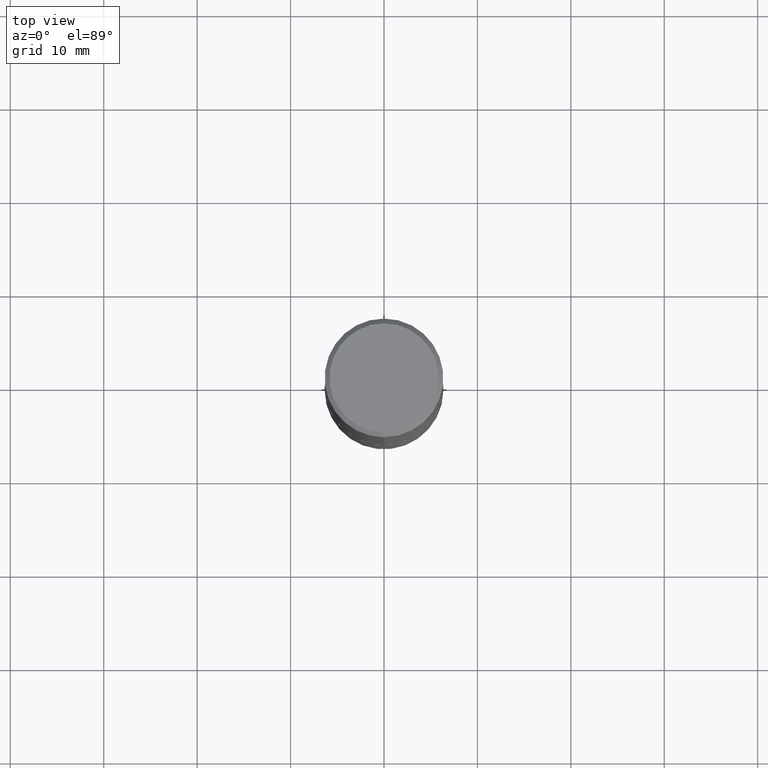
[diagram: clean part render]
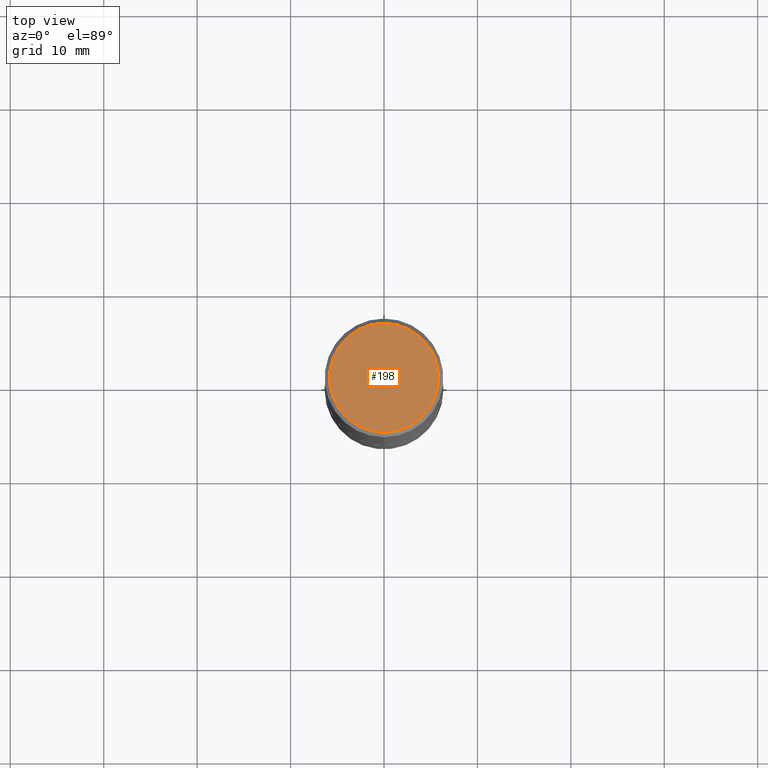
[diagram: same view with one face highlighted and labeled with its STEP entity id]
A machine part, top view. The second image highlights one B-rep face of the part: STEP entity #198.
In plain terms, the highlighted planar face has unit normal (0, -0, -1).
Its self-contained STEP definition (entity closure, byte-faithful):
#52 = CARTESIAN_POINT ( 'NONE',  ( 1.606081415867841067E-15, 0.2299999999999999822, -8.053652698183474938E-16 ) ) ;
#69 = DIRECTION ( 'NONE',  ( 6.982962677686265922E-15, 1.000000000000000000, -3.493136170489874041E-15 ) ) ;
#74 = EDGE_LOOP ( 'NONE', ( #391, #341 ) ) ;
#93 = DIRECTION ( 'NONE',  ( 2.444313243422440310E-29, -3.493136170489874041E-15, -1.000000000000000000 ) ) ;
#95 = CARTESIAN_POINT ( 'NONE',  ( 9.503248420027907092E-47, -1.358096834866801996E-32, -3.887901211352844228E-18 ) ) ;
#100 = CARTESIAN_POINT ( 'NONE',  ( 9.503248420027907092E-47, -1.358096834866801996E-32, -3.887901211352844228E-18 ) ) ;
#103 = CARTESIAN_POINT ( 'NONE',  ( 1.675911042644703774E-15, 0.2299999999999999822, -8.073092204240238200E-16 ) ) ;
#107 = AXIS2_PLACEMENT_3D ( 'NONE', #52, #93, #69 ) ;
#126 = VERTEX_POINT ( 'NONE', #253 ) ;
#134 = CIRCLE ( 'NONE', #361, 0.2299999999999999822 ) ;
#198 = ADVANCED_FACE ( 'NONE', ( #362 ), #342, .F. ) ;
#210 = EDGE_CURVE ( 'NONE', #126, #414, #134, .T. ) ;
#232 = DIRECTION ( 'NONE',  ( -2.444313243422440590E-29, 3.493136170489874041E-15, 1.000000000000000000 ) ) ;
#235 = DIRECTION ( 'NONE',  ( -2.444313243422440590E-29, 3.493136170489874041E-15, 1.000000000000000000 ) ) ;
#253 = CARTESIAN_POINT ( 'NONE',  ( -1.646519519465166968E-15, -0.2299999999999999822, 7.995334180013181207E-16 ) ) ;
#274 = CIRCLE ( 'NONE', #348, 0.2299999999999999822 ) ;
#299 = DIRECTION ( 'NONE',  ( -6.982962677686265922E-15, -1.000000000000000000, 3.493136170489874041E-15 ) ) ;
#341 = ORIENTED_EDGE ( 'NONE', *, *, #210, .T. ) ;
#342 = PLANE ( 'NONE',  #107 ) ;
#348 = AXIS2_PLACEMENT_3D ( 'NONE', #100, #235, #299 ) ;
#361 = AXIS2_PLACEMENT_3D ( 'NONE', #95, #232, #375 ) ;
#362 = FACE_OUTER_BOUND ( 'NONE', #74, .T. ) ;
#375 = DIRECTION ( 'NONE',  ( -6.982962677686265922E-15, -1.000000000000000000, 3.493136170489874041E-15 ) ) ;
#391 = ORIENTED_EDGE ( 'NONE', *, *, #400, .T. ) ;
#400 = EDGE_CURVE ( 'NONE', #414, #126, #274, .T. ) ;
#414 = VERTEX_POINT ( 'NONE', #103 ) ;